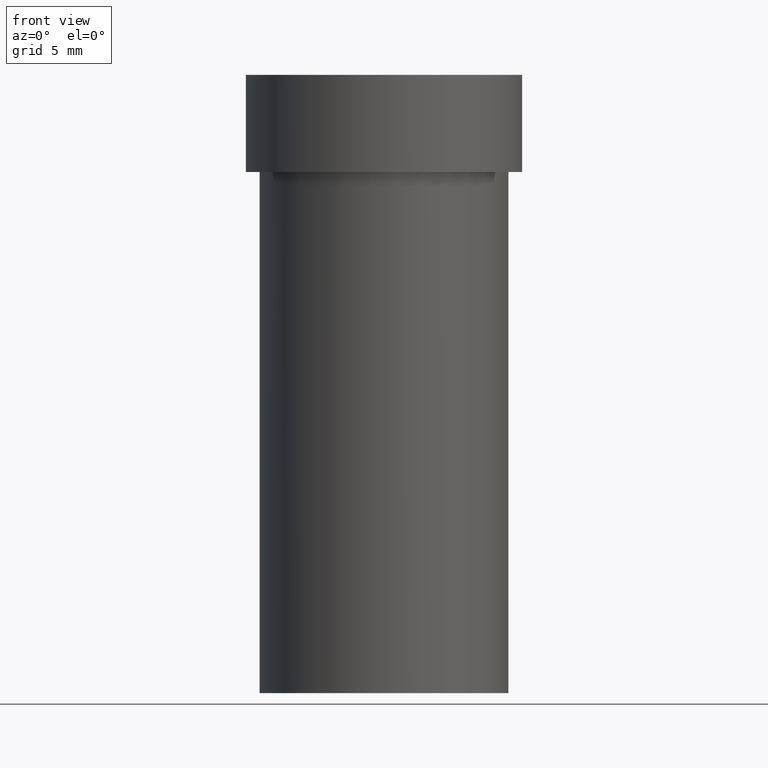
[diagram: clean part render]
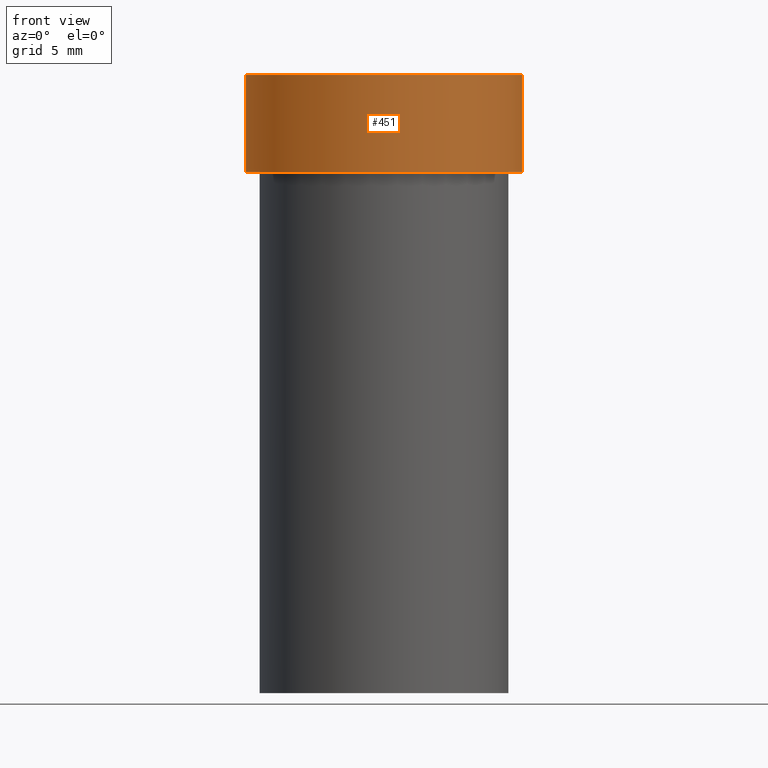
[diagram: same view with one face highlighted and labeled with its STEP entity id]
A machine part, front view. The second image highlights one B-rep face of the part: STEP entity #451.
In plain terms, the highlighted cylindrical surface (partial cylindrical patch) has radius 10 mm, axis along (0, -0, -1).
Its self-contained STEP definition (entity closure, byte-faithful):
#4 = FACE_OUTER_BOUND ( 'NONE', #432, .T. ) ;
#7 = AXIS2_PLACEMENT_3D ( 'NONE', #323, #282, #431 ) ;
#10 = CARTESIAN_POINT ( 'NONE',  ( -0.3936999999999999389, 3.711672783926467705E-15, 0.2618561992778351555 ) ) ;
#29 = LINE ( 'NONE', #173, #140 ) ;
#38 = DIRECTION ( 'NONE',  ( 2.445468806185136597E-29, -3.491481338843145583E-15, -1.000000000000000000 ) ) ;
#65 = AXIS2_PLACEMENT_3D ( 'NONE', #355, #38, #112 ) ;
#78 = CYLINDRICAL_SURFACE ( 'NONE', #65, 0.3936999999999999389 ) ;
#84 = EDGE_CURVE ( 'NONE', #437, #295, #29, .T. ) ;
#111 = DIRECTION ( 'NONE',  ( 2.445468806185136597E-29, -3.491481338843145583E-15, -1.000000000000000000 ) ) ;
#112 = DIRECTION ( 'NONE',  ( -1.000000000000000000, 6.982962677686266711E-15, -4.876176775795935793E-29 ) ) ;
#129 = ORIENTED_EDGE ( 'NONE', *, *, #207, .T. ) ;
#138 = CARTESIAN_POINT ( 'NONE',  ( -0.3936999999999999389, 2.749192406205082822E-15, -1.919750796630859611E-29 ) ) ;
#140 = VECTOR ( 'NONE', #465, 39.37007874015748143 ) ;
#165 = EDGE_CURVE ( 'NONE', #427, #298, #168, .T. ) ;
#168 = LINE ( 'NONE', #138, #453 ) ;
#173 = CARTESIAN_POINT ( 'NONE',  ( 0.3936999999999999389, -2.700978061722651647E-15, 1.902916848228363047E-29 ) ) ;
#175 = CARTESIAN_POINT ( 'NONE',  ( 0.3936999999999999389, -1.834926372966129509E-15, 0.2618561992778351555 ) ) ;
#178 = ORIENTED_EDGE ( 'NONE', *, *, #276, .F. ) ;
#182 = CARTESIAN_POINT ( 'NONE',  ( -0.3937000000000000499, 2.696820186122435743E-15, -0.01499999999999999944 ) ) ;
#207 = EDGE_CURVE ( 'NONE', #437, #427, #306, .T. ) ;
#219 = ORIENTED_EDGE ( 'NONE', *, *, #165, .T. ) ;
#252 = CARTESIAN_POINT ( 'NONE',  ( 0.3937000000000000499, -2.753350281805299909E-15, -0.01499999999999999944 ) ) ;
#267 = DIRECTION ( 'NONE',  ( 2.445468806185136877E-29, -3.491481338843145188E-15, -1.000000000000000000 ) ) ;
#276 = EDGE_CURVE ( 'NONE', #295, #298, #353, .T. ) ;
#282 = DIRECTION ( 'NONE',  ( 2.445468806185136597E-29, -3.491481338843145583E-15, -1.000000000000000000 ) ) ;
#287 = CARTESIAN_POINT ( 'NONE',  ( 3.668203209277705088E-31, -5.237222008264718399E-17, -0.01499999999999999944 ) ) ;
#295 = VERTEX_POINT ( 'NONE', #252 ) ;
#298 = VERTEX_POINT ( 'NONE', #182 ) ;
#306 = CIRCLE ( 'NONE', #7, 0.3936999999999999389 ) ;
#321 = AXIS2_PLACEMENT_3D ( 'NONE', #287, #111, #396 ) ;
#323 = CARTESIAN_POINT ( 'NONE',  ( -6.403611670401447787E-30, 9.142660332389533129E-16, 0.2618561992778351555 ) ) ;
#353 = CIRCLE ( 'NONE', #321, 0.3937000000000000499 ) ;
#355 = CARTESIAN_POINT ( 'NONE',  ( 0.000000000000000000, 0.000000000000000000, 0.000000000000000000 ) ) ;
#367 = ORIENTED_EDGE ( 'NONE', *, *, #84, .F. ) ;
#396 = DIRECTION ( 'NONE',  ( -1.000000000000000000, 6.982962677686265922E-15, 0.000000000000000000 ) ) ;
#427 = VERTEX_POINT ( 'NONE', #10 ) ;
#431 = DIRECTION ( 'NONE',  ( -1.000000000000000000, 6.982962677686266711E-15, 0.000000000000000000 ) ) ;
#432 = EDGE_LOOP ( 'NONE', ( #367, #129, #219, #178 ) ) ;
#437 = VERTEX_POINT ( 'NONE', #175 ) ;
#451 = ADVANCED_FACE ( 'NONE', ( #4 ), #78, .T. ) ;
#453 = VECTOR ( 'NONE', #267, 39.37007874015748143 ) ;
#465 = DIRECTION ( 'NONE',  ( 2.445468806185136877E-29, -3.491481338843145188E-15, -1.000000000000000000 ) ) ;